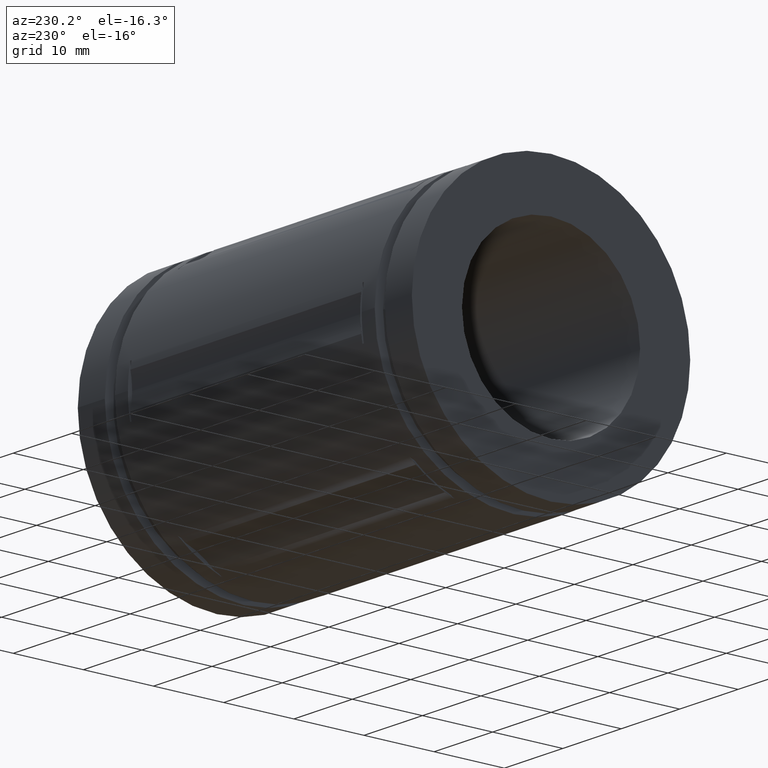
[diagram: clean part render]
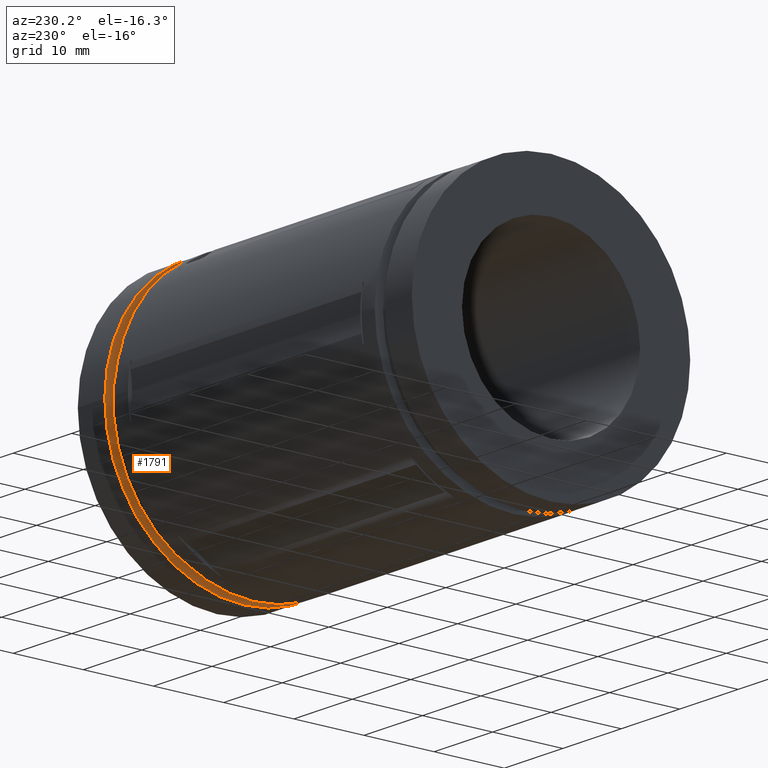
[diagram: same view with one face highlighted and labeled with its STEP entity id]
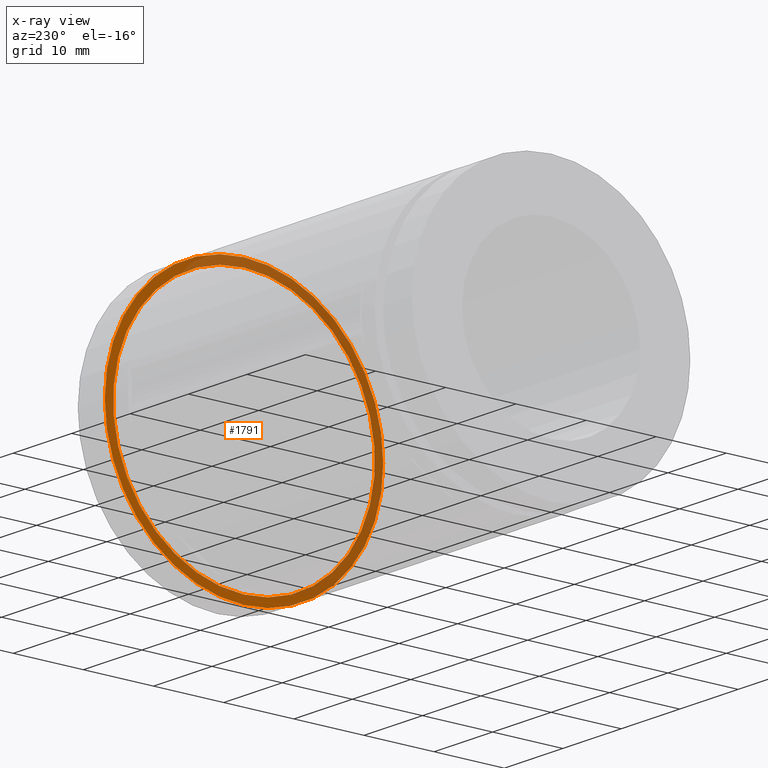
[diagram: x-ray of the same camera — body ghosted, the highlighted face saturated]
A machine part, auxiliary view. The second image highlights one B-rep face of the part: STEP entity #1791.
The next image is the same camera in x-ray: the body ghosted, the highlighted face saturated — about 49% of this face is hidden behind the body in this view.
In plain terms, the highlighted planar face has unit normal (-1, 0, 0).
Its self-contained STEP definition (entity closure, byte-faithful):
#38 = EDGE_LOOP ( 'NONE', ( #1738, #1128 ) ) ;
#63 = EDGE_CURVE ( 'NONE', #144, #1396, #1847, .T. ) ;
#135 = AXIS2_PLACEMENT_3D ( 'NONE', #391, #389, #384 ) ;
#144 = VERTEX_POINT ( 'NONE', #700 ) ;
#234 = CARTESIAN_POINT ( 'NONE',  ( 2.067913385826772200, 0.0000000000000000000, 0.0000000000000000000 ) ) ;
#240 = EDGE_CURVE ( 'NONE', #1921, #665, #1749, .T. ) ;
#269 = DIRECTION ( 'NONE',  ( 1.000000000000000000, 0.0000000000000000000, 0.0000000000000000000 ) ) ;
#270 = CARTESIAN_POINT ( 'NONE',  ( 2.067913385826772200, -0.7906250000000012400, -0.7906250000000001300 ) ) ;
#290 = DIRECTION ( 'NONE',  ( 0.0000000000000000000, 0.0000000000000000000, -1.000000000000000000 ) ) ;
#338 = EDGE_CURVE ( 'NONE', #1396, #144, #1711, .T. ) ;
#369 = CARTESIAN_POINT ( 'NONE',  ( 2.067913385826772200, -0.7812500000000000000, 9.567553118338697000E-017 ) ) ;
#384 = DIRECTION ( 'NONE',  ( 0.0000000000000000000, 0.0000000000000000000, -1.000000000000000000 ) ) ;
#389 = DIRECTION ( 'NONE',  ( 1.000000000000000000, 0.0000000000000000000, 0.0000000000000000000 ) ) ;
#391 = CARTESIAN_POINT ( 'NONE',  ( 2.067913385826772200, 0.0000000000000000000, 0.0000000000000000000 ) ) ;
#665 = VERTEX_POINT ( 'NONE', #1190 ) ;
#700 = CARTESIAN_POINT ( 'NONE',  ( 2.067913385826772200, 0.7812500000000000000, 0.0000000000000000000 ) ) ;
#717 = DIRECTION ( 'NONE',  ( 0.0000000000000000000, 1.000000000000000000, 0.0000000000000000000 ) ) ;
#864 = AXIS2_PLACEMENT_3D ( 'NONE', #234, #269, #290 ) ;
#877 = FACE_OUTER_BOUND ( 'NONE', #38, .T. ) ;
#901 = FACE_BOUND ( 'NONE', #1132, .T. ) ;
#1008 = CARTESIAN_POINT ( 'NONE',  ( 2.067913385826772200, -3.183570890254403500E-017, 0.0000000000000000000 ) ) ;
#1009 = PLANE ( 'NONE',  #1965 ) ;
#1037 = DIRECTION ( 'NONE',  ( 1.000000000000000000, 1.748382715945128500E-016, 0.0000000000000000000 ) ) ;
#1128 = ORIENTED_EDGE ( 'NONE', *, *, #338, .F. ) ;
#1132 = EDGE_LOOP ( 'NONE', ( #2028, #1560 ) ) ;
#1166 = AXIS2_PLACEMENT_3D ( 'NONE', #1008, #1037, #717 ) ;
#1190 = CARTESIAN_POINT ( 'NONE',  ( 2.067913385826772200, 8.992957518778124300E-017, 0.7343307086614173600 ) ) ;
#1208 = DIRECTION ( 'NONE',  ( 0.0000000000000000000, 0.0000000000000000000, 1.000000000000000000 ) ) ;
#1217 = CIRCLE ( 'NONE', #135, 0.7343307086614173600 ) ;
#1370 = EDGE_CURVE ( 'NONE', #665, #1921, #1217, .T. ) ;
#1396 = VERTEX_POINT ( 'NONE', #369 ) ;
#1560 = ORIENTED_EDGE ( 'NONE', *, *, #1370, .T. ) ;
#1711 = CIRCLE ( 'NONE', #1949, 0.7812500000000000000 ) ;
#1738 = ORIENTED_EDGE ( 'NONE', *, *, #63, .F. ) ;
#1749 = CIRCLE ( 'NONE', #864, 0.7343307086614173600 ) ;
#1791 = ADVANCED_FACE ( 'NONE', ( #877, #901 ), #1009, .T. ) ;
#1847 = CIRCLE ( 'NONE', #1166, 0.7812500000000000000 ) ;
#1921 = VERTEX_POINT ( 'NONE', #1963 ) ;
#1949 = AXIS2_PLACEMENT_3D ( 'NONE', #1962, #1961, #1959 ) ;
#1959 = DIRECTION ( 'NONE',  ( 0.0000000000000000000, 1.000000000000000000, 0.0000000000000000000 ) ) ;
#1961 = DIRECTION ( 'NONE',  ( 1.000000000000000000, 1.748382715945128500E-016, 0.0000000000000000000 ) ) ;
#1962 = CARTESIAN_POINT ( 'NONE',  ( 2.067913385826772200, -3.183570890254403500E-017, 0.0000000000000000000 ) ) ;
#1963 = CARTESIAN_POINT ( 'NONE',  ( 2.067913385826772200, 0.0000000000000000000, -0.7343307086614173600 ) ) ;
#1965 = AXIS2_PLACEMENT_3D ( 'NONE', #270, #2038, #1208 ) ;
#2028 = ORIENTED_EDGE ( 'NONE', *, *, #240, .T. ) ;
#2038 = DIRECTION ( 'NONE',  ( -1.000000000000000000, 0.0000000000000000000, 0.0000000000000000000 ) ) ;